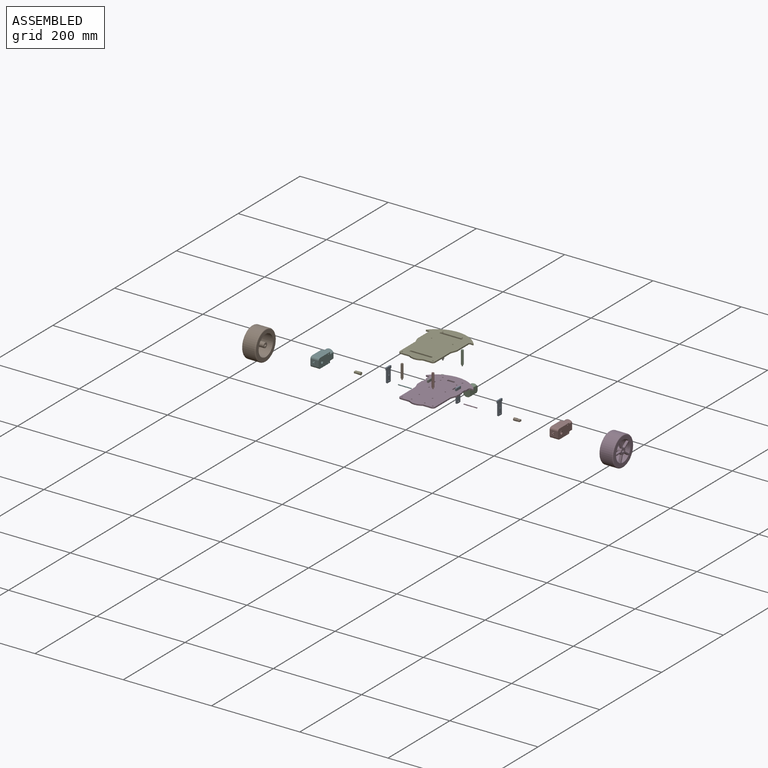
[diagram: assembled view]
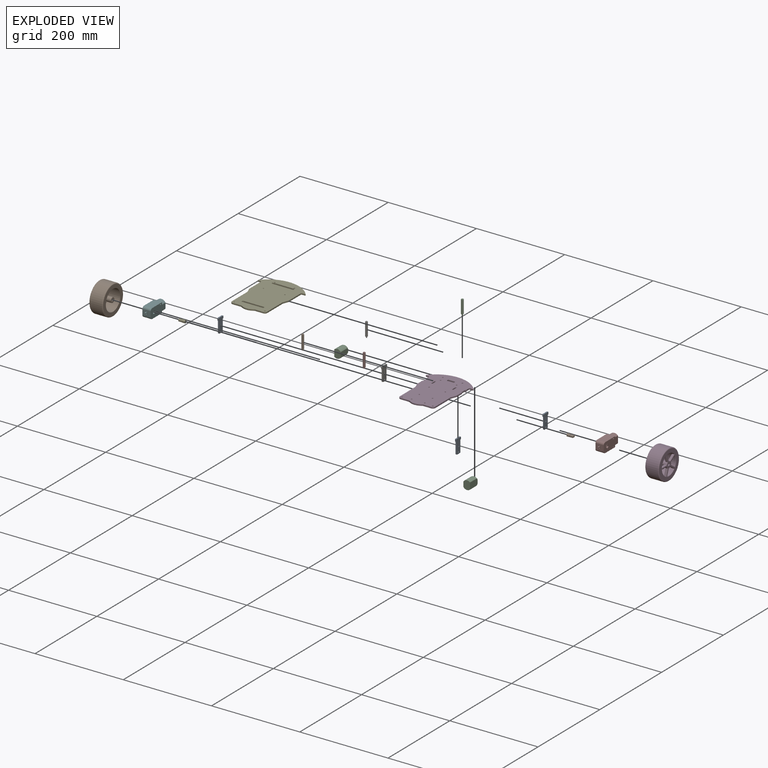
[diagram: exploded view]
GUIDED TOUR — MATED ASSEMBLY (Onshape document cdb42b76ef99259b916888b5, AutoMate assembly cdb42b76ef99259b916888b5_35de2721199a26688b1454a4_0b09e8b9e0a6c5ff9e0586c1_default)

This assembly has 20 components, labeled P0..P19 below (a component is one placed occurrence of a part; the same part can appear more than once), held together by 0 mates. A mate is a constraint between two components; its type names the relative motion it leaves free:
Axis/direction vectors are unit vectors and 'through' points are millimeter coordinates, both in the assembly's world frame.

MATES

ASSEMBLY ORDER
  1. P11 — the base component [order verified]
  2. P6 [order verified]
  3. P16 [order verified]
  4. P14 [order verified]
  5. P10 [order verified]
  6. P2 [order verified]
  7. P18 [order verified]
  8. P15 [order verified]
  9. P1 [order verified]
  10. P19 [order verified]
  11. P5 [order verified]
  12. P8 [order verified]
  13. P12 [order verified]
  14. P13 [order verified]
  15. P17 [order verified]
  16. P0 [order verified]
  17. P9 [order verified]
  18. P7 [order verified]
  19. P4 [order verified]
  20. P3 [order verified]
Order-tag legend:
  [order verified] — this step's position reverses a verified removal order: the component was checked to insert without passing through the ones already placed.

Of the 20 components, 8 carry the full construction recipe — the FeatureScript program that regenerates the part's solid from scratch; the rest are supplied as boundary geometry only.
Because this assembly has more than 12 components, the tour below covers the 12 most significant ones individually (every recipe-attached component first, then the largest by part volume), in assembly order; the remaining 8 are summarized together in a grouped section at the end.
Each toured component is shown spotlighted twice — in the assembled view, then in the exploded view, where a leader line traces a displaced component back to its assembled socket (saturated green if recipe-attached, orange if geometry-only; every other component desaturated gray) — followed by its recipe or geometry summary and the mates that hold it.
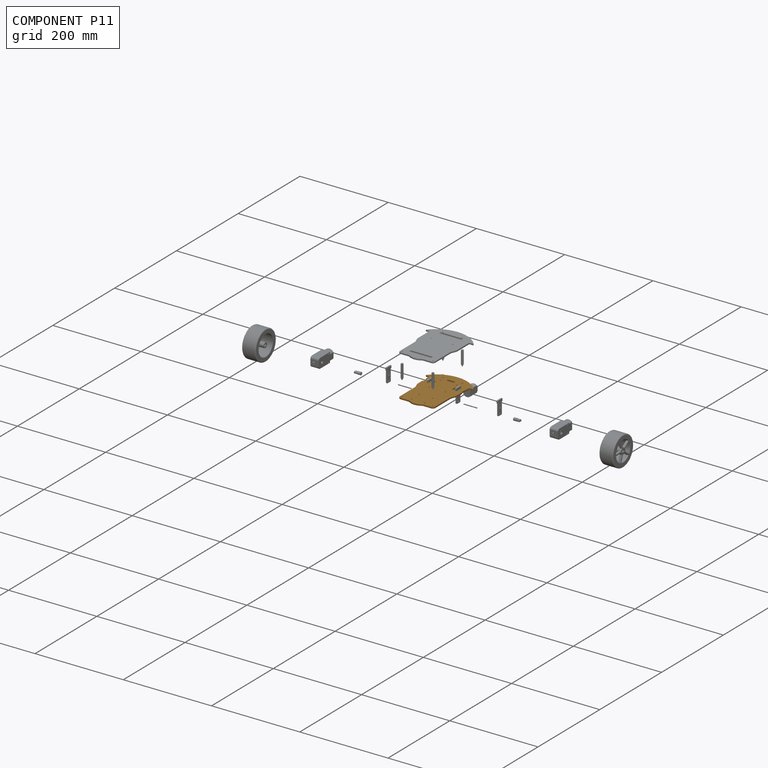
[diagram: component P11 — assembled]
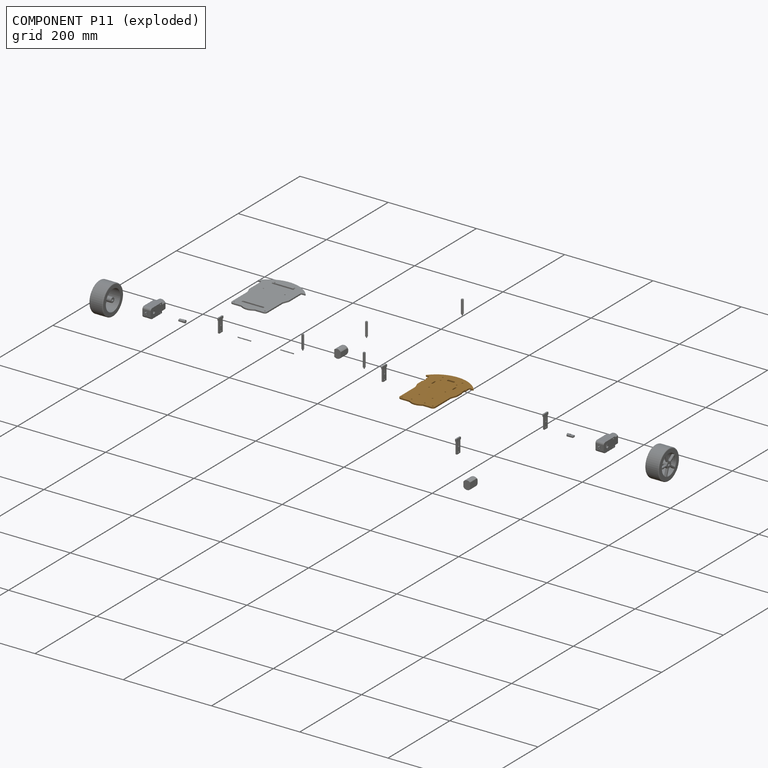
[diagram: component P11 — exploded]
COMPONENT P11 — geometry summary (no construction recipe available for this part):
  bounding box: 140.0 x 107.9 x 3.0 mm
  B-rep topology: 1 solid, 58 faces, 336 edges
  volume: 32997 mm^3 (73% of its bounding box)
  symmetry: 2-fold rotationally symmetric about the y axis; mirror-symmetric across its x mid-plane, z mid-plane
Held by: no mates (free).
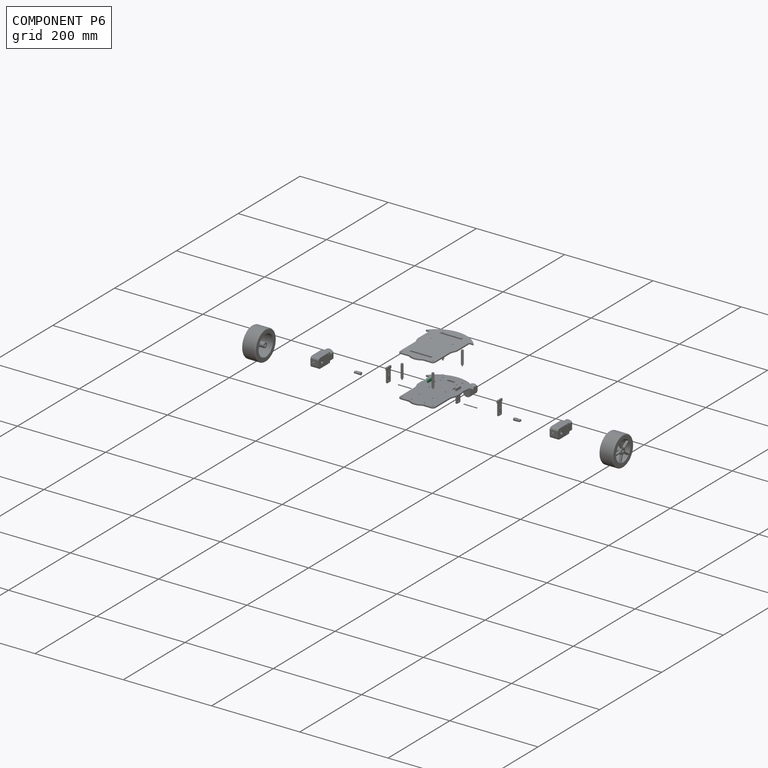
[diagram: component P6 — assembled]
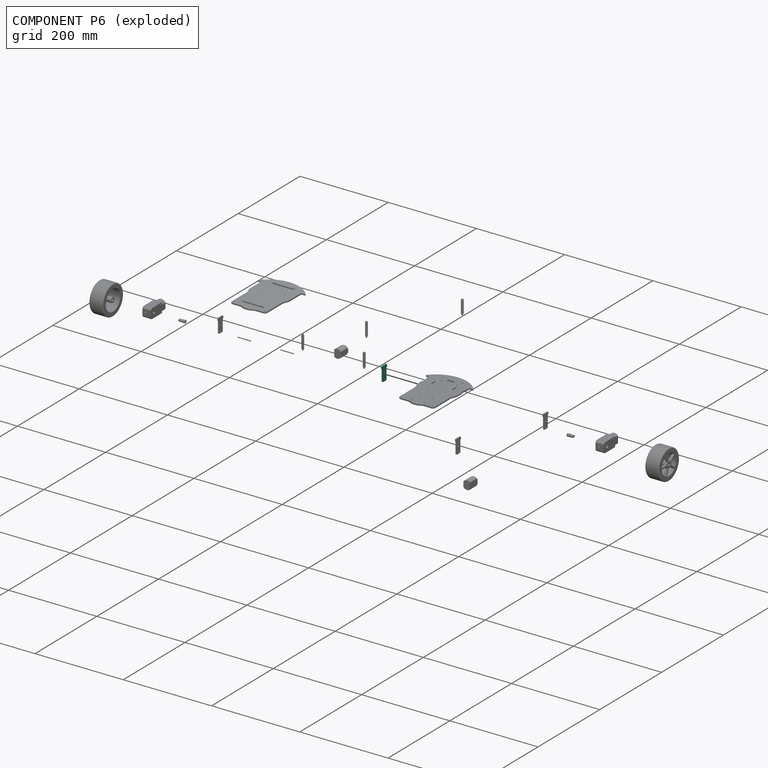
[diagram: component P6 — exploded]
COMPONENT P6 — same part as P0 (CADFS 00548820); its construction recipe is shown at P0.
Held by: no mates (free).
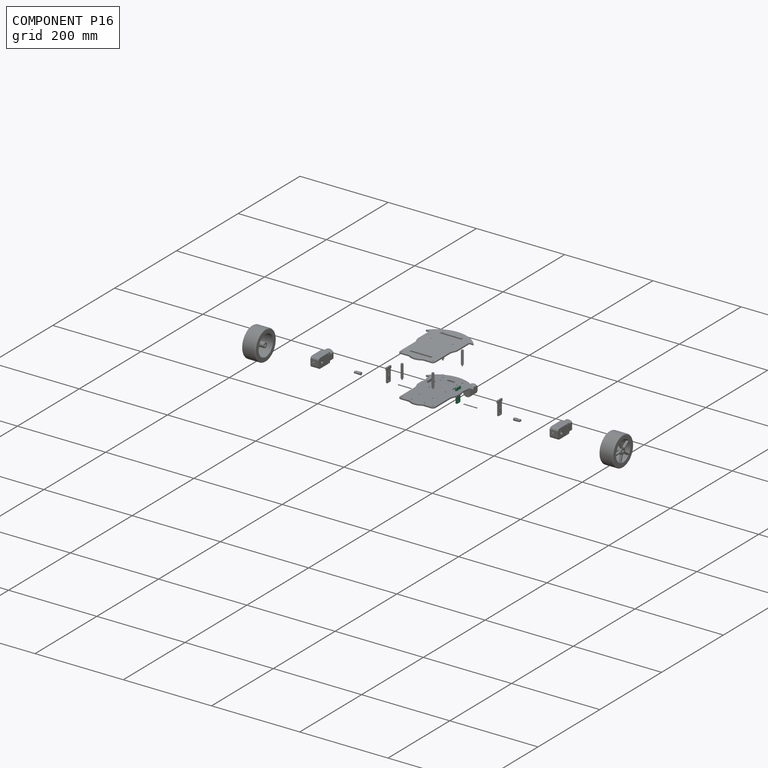
[diagram: component P16 — assembled]
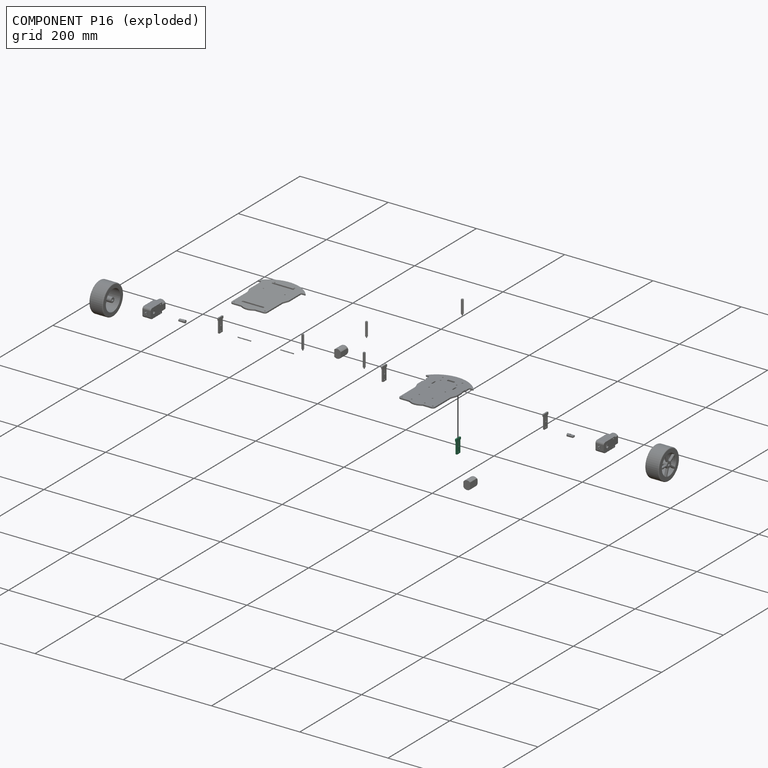
[diagram: component P16 — exploded]
COMPONENT P16 — same part as P0 (CADFS 00548820); its construction recipe is shown at P0.
Held by: no mates (free).
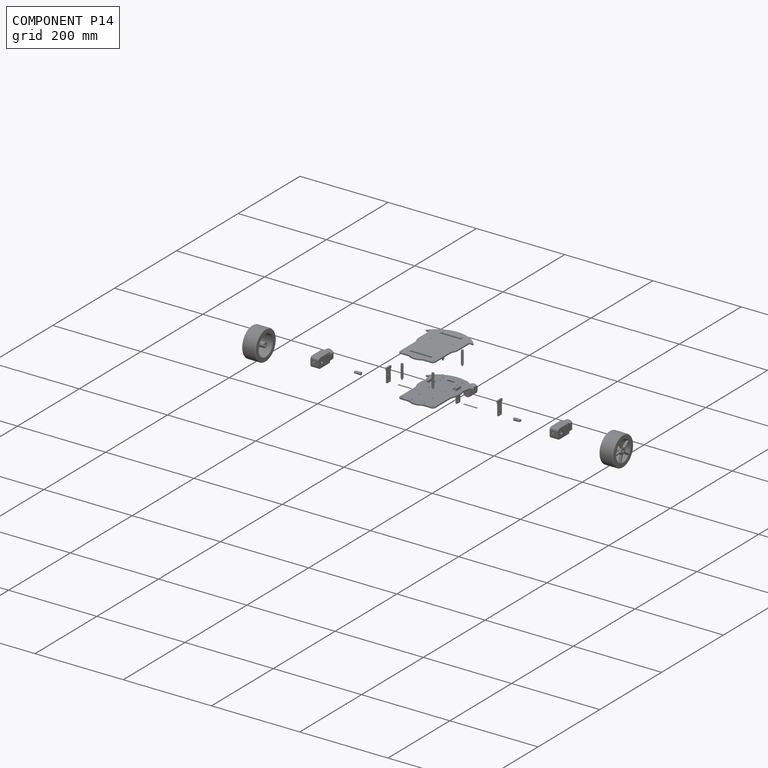
[diagram: component P14 — assembled]
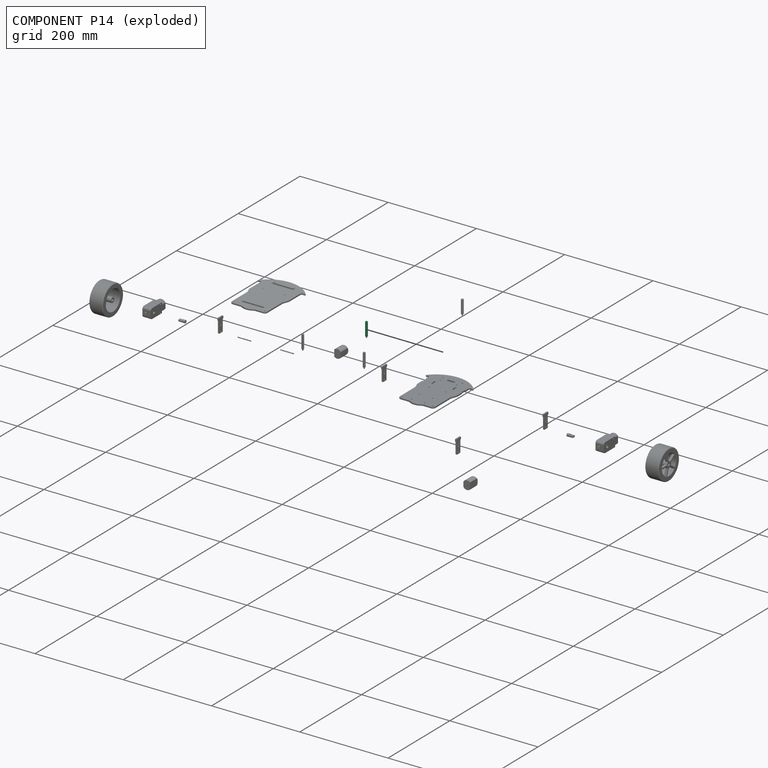
[diagram: component P14 — exploded]
COMPONENT P14 — same part as P1 (CADFS 00548821); its construction recipe is shown at P1.
Held by: no mates (free).
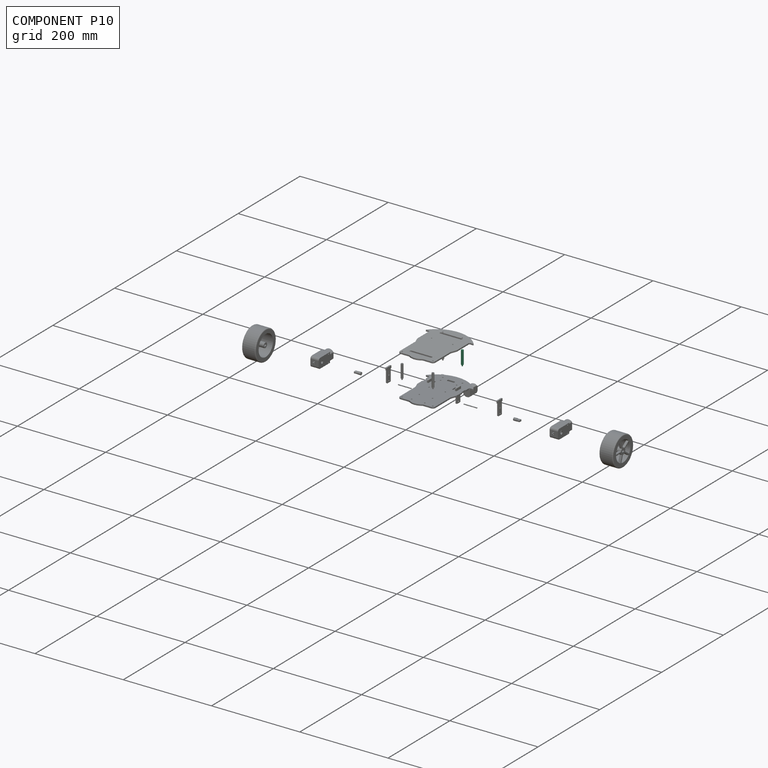
[diagram: component P10 — assembled]
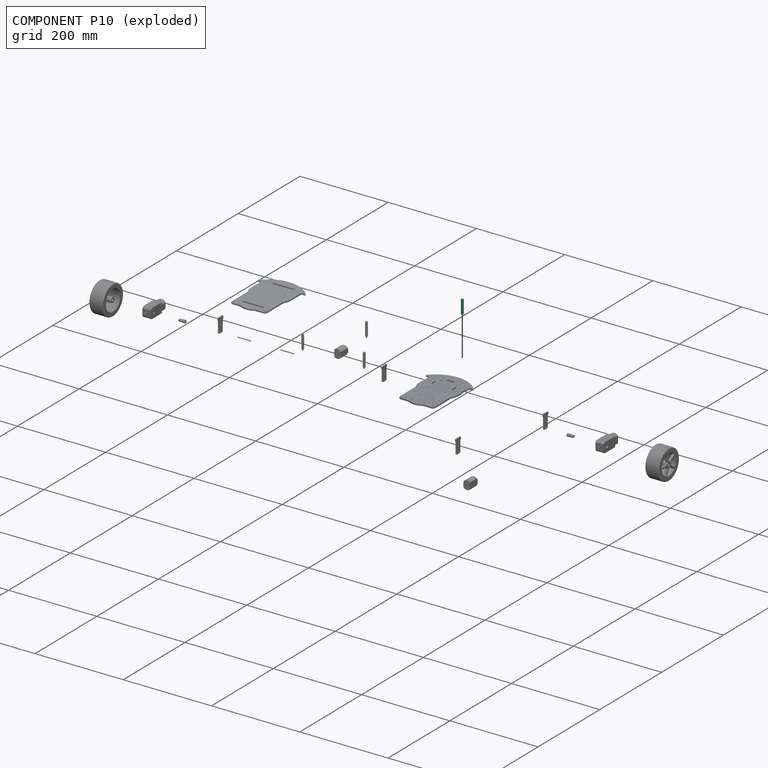
[diagram: component P10 — exploded]
COMPONENT P10 — same part as P1 (CADFS 00548821); its construction recipe is shown at P1.
Held by: no mates (free).
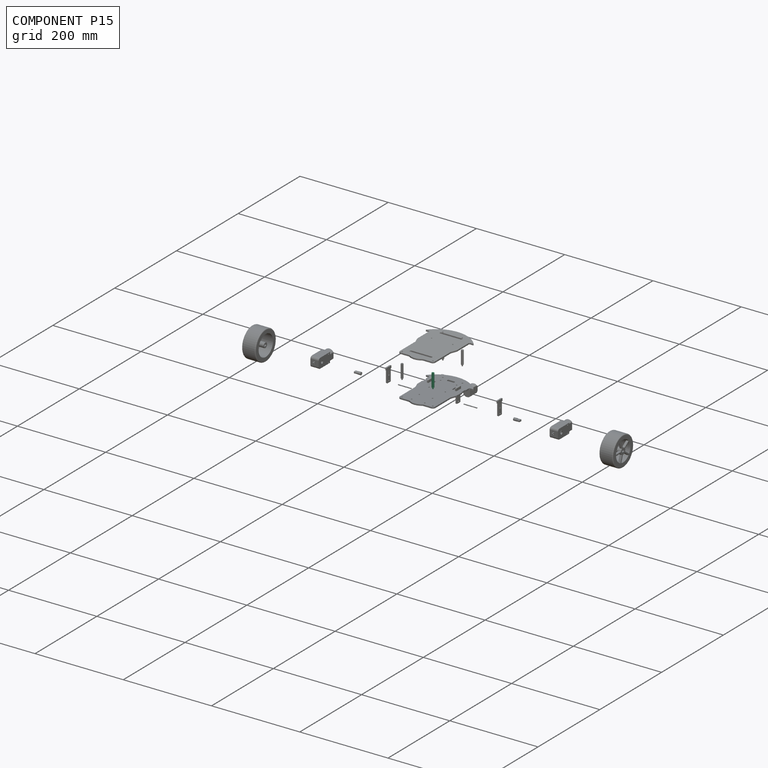
[diagram: component P15 — assembled]
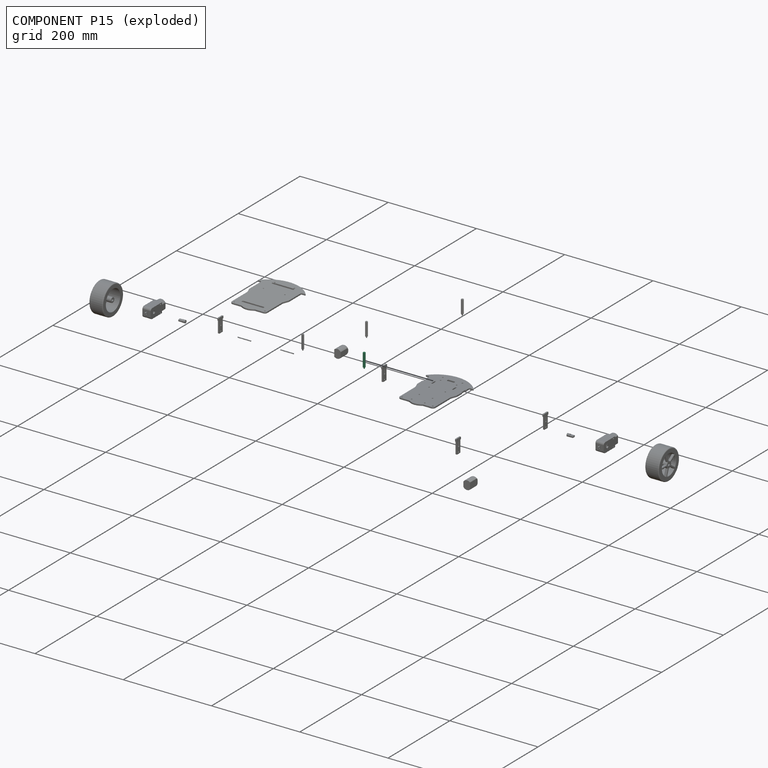
[diagram: component P15 — exploded]
COMPONENT P15 — same part as P1 (CADFS 00548821); its construction recipe is shown at P1.
Held by: no mates (free).
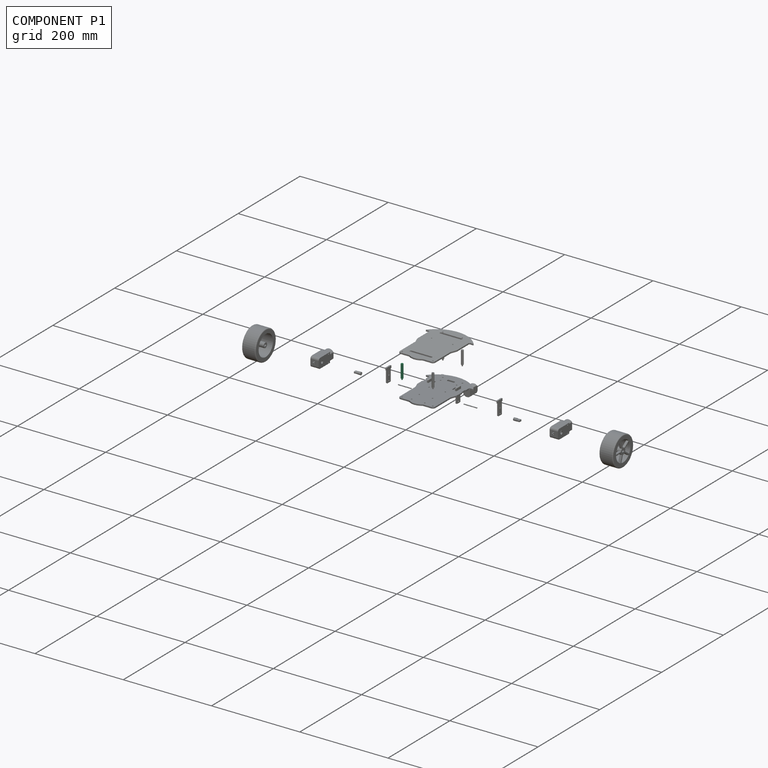
[diagram: component P1 — assembled]
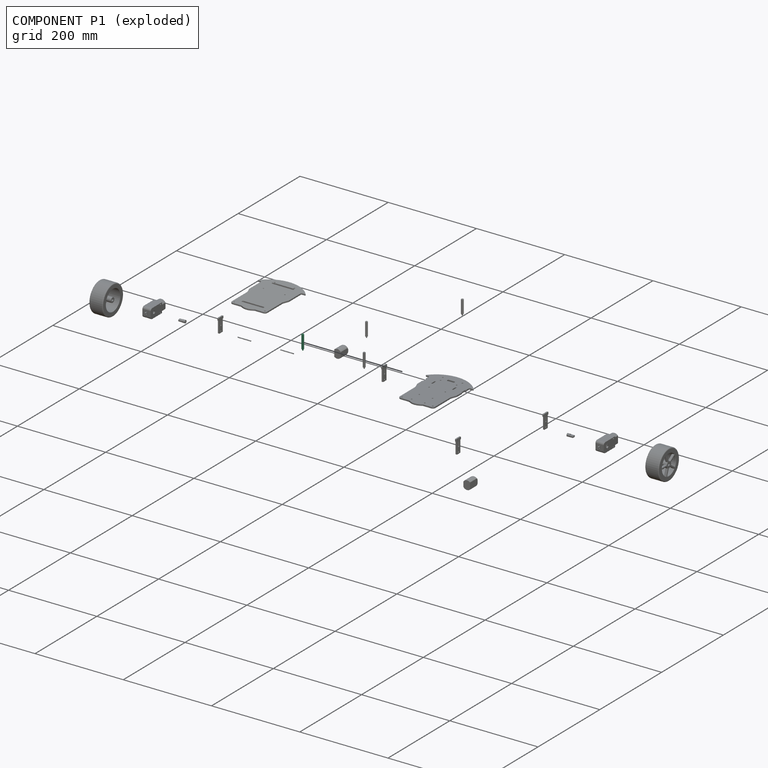
[diagram: component P1 — exploded]
COMPONENT P1 — recipe-attached (CADFS 00548821, mesh-verified: the recipe's output STEP matches this component's geometry to below the mesh-comparison resolution (tessellation chordal tolerance ~0.0508 mm)).
Held by: no mates (free).
Construction recipe (FeatureScript — the CAD program that rebuilds this solid; sketch coordinates are in the units given by the * unit suffixes, e.g. mm):

FeatureScript 1511;
import(path : "onshape/std/geometry.fs", version : "1511.0");
import(path : "onshape/std/common.fs", version : "1511.0");
const mm = millimeter;
const VERTEX = EntityType.VERTEX;
const EDGE = EntityType.EDGE;
const FACE = EntityType.FACE;
const BODY = EntityType.BODY;
function v(x, y){return vector(x, y);}
function OD(order){return orderDisambiguation(order);}
function OSD(set){return originalSetDisambiguation(set);}
function TD(topology){return topologyDisambiguation(topology);}
function TDD(query){return trueDependencyDisambiguation(query);}
function sQuery(a, b, c) {return sketchEntityQuery(a, b, c);}

annotation { "Feature Type Name" : "Feature", "Feature Type Description" : "" }
export const myFeature = defineFeature(function(context is Context, id is Id, definition is map)
    precondition{}
    {
        {
            var Q0;
            Q0=qCreatedBy(makeId("Top.planeOp"),FACE);
            var sketch = newSketch(context, id + "F0", { "sketchPlane" : qUnion([Q0])});
            skCircle(sketch, "E0", {"center": v(0, 0) * mm, "radius": 1.25 * mm});
            skSolve(sketch);
        }
        {
            var Q0;
            Q0 = qSketchRegion(id + "F0", true);
            extrude(context, id + "F1", {"entities" : qUnion([Q0]), "endBound" : BoundingType.SYMMETRIC, "oppositeDirection" : true, "depth" : 3 * mm, "offsetDistance" : 25 * mm});
        }
        {
            var Q0;
            Q0=makeQuery(id+"F1.opExtrude","CAP_FACE",FACE,{"disambiguationData":[OSD([sQuery(id+"F0.wireOp",EDGE,"E0")])],"isStart":true});
            var sketch = newSketch(context, id + "F2", { "sketchPlane" : qUnion([Q0])});
            skCircle(sketch, "E1.cCircle", {"center": v(0, 0) * mm, "radius": 2.5 * mm, "construction": true});
            skLineSegment(sketch, "E1.0", {"start": v(1.44, -2.5) * mm, "end": v(-1.44, -2.5) * mm});
            skLineSegment(sketch, "E1.1", {"start": v(-1.44, -2.5) * mm, "end": v(-2.89, 0) * mm});
            skLineSegment(sketch, "E1.2", {"start": v(-2.89, 0) * mm, "end": v(-1.44, 2.5) * mm});
            skLineSegment(sketch, "E1.3", {"start": v(-1.44, 2.5) * mm, "end": v(1.44, 2.5) * mm});
            skLineSegment(sketch, "E1.4", {"start": v(1.44, 2.5) * mm, "end": v(2.89, 0) * mm});
            skLineSegment(sketch, "E1.5", {"start": v(2.89, 0) * mm, "end": v(1.44, -2.5) * mm});
            skPoint(sketch, "E1.0.midPoint", {"position": v(0, -2.5) * mm});
            skSolve(sketch);
        }
        {
            var Q0;
            Q0=makeQuery(id+"F2.imprint","IMPRINT",FACE,{"disambiguationData":[TD([[makeQuery(id+"F2.imprint","IMPRINT",EDGE,{"derivedFrom":sQuery(id+"F2.wireOp",EDGE,"E1.0")}),-1.0]])]});
            var Q1;
            Q1=makeQuery(id+"F2.imprint","IMPRINT",FACE,{"disambiguationData":[TD([[makeQuery(id+"F2.imprint","IMPRINT",EDGE,{"derivedFrom":makeQuery(id+"F1.opExtrude","CAP_EDGE",EDGE,{"disambiguationData":[OSD([sQuery(id+"F0.wireOp",EDGE,"E0")])],"isStart":true})}),1.0]])]});
            extrude(context, id + "F3", {"entities" : qUnion([Q0, Q1]), "operationType" : NewBodyOperationType.ADD, "depth" : 30 * mm, "offsetDistance" : 25 * mm});
        }
        {
            var Q0;
            Q0=makeQuery(id+"F3.opExtrude","CAP_FACE",FACE,{"disambiguationData":[OSD([sQuery(id+"F2.wireOp",EDGE,"E1.0"),sQuery(id+"F2.wireOp",EDGE,"E1.1"),sQuery(id+"F2.wireOp",EDGE,"E1.2"),sQuery(id+"F2.wireOp",EDGE,"E1.3"),sQuery(id+"F2.wireOp",EDGE,"E1.4"),sQuery(id+"F2.wireOp",EDGE,"E1.5")])],"isStart":false});
            var sketch = newSketch(context, id + "F4", { "sketchPlane" : qUnion([Q0])});
            skCircle(sketch, "E2", {"center": v(0, 0) * mm, "radius": 1.25 * mm});
            skSolve(sketch);
        }
        {
            var Q0;
            Q0=makeQuery(id+"F4.imprint","IMPRINT",FACE,{"disambiguationData":[TD([[makeQuery(id+"F4.imprint","IMPRINT",EDGE,{"derivedFrom":sQuery(id+"F4.wireOp",EDGE,"E2")}),1.0]])]});
            extrude(context, id + "F5", {"entities" : qUnion([Q0]), "operationType" : NewBodyOperationType.REMOVE, "oppositeDirection" : true, "depth" : 3 * mm, "offsetDistance" : 25 * mm});
        }
    });
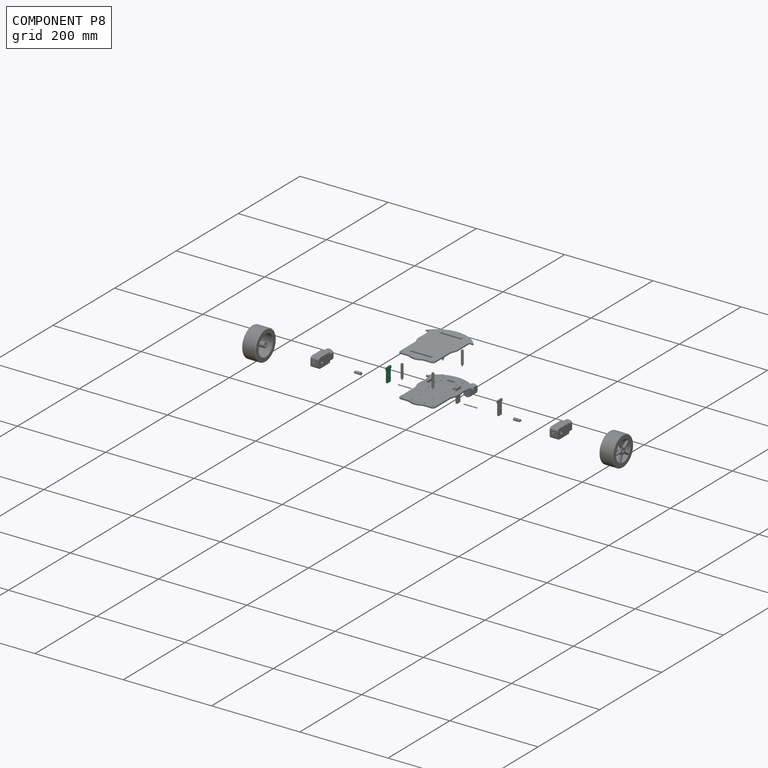
[diagram: component P8 — assembled]
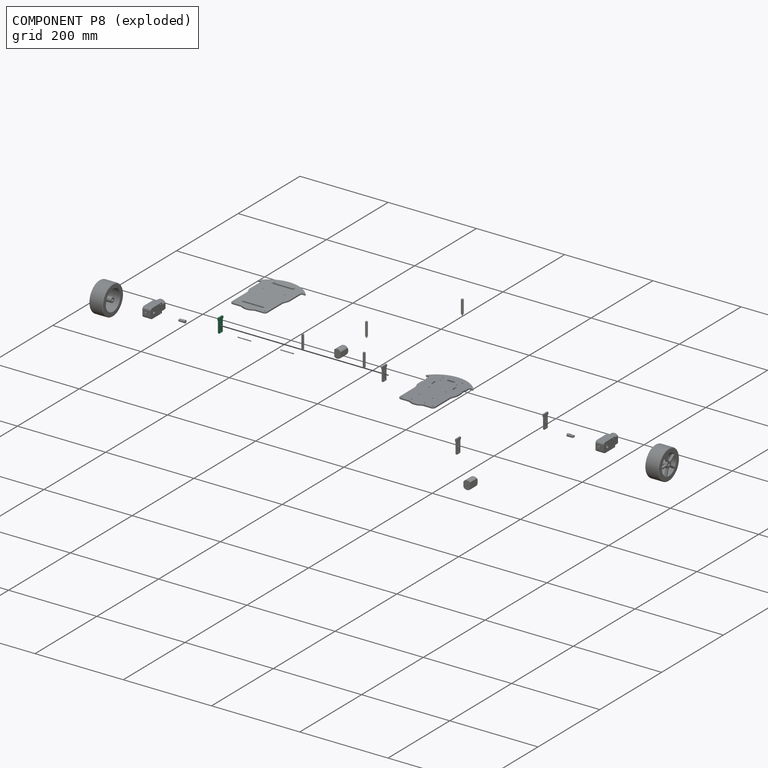
[diagram: component P8 — exploded]
COMPONENT P8 — same part as P0 (CADFS 00548820); its construction recipe is shown at P0.
Held by: no mates (free).
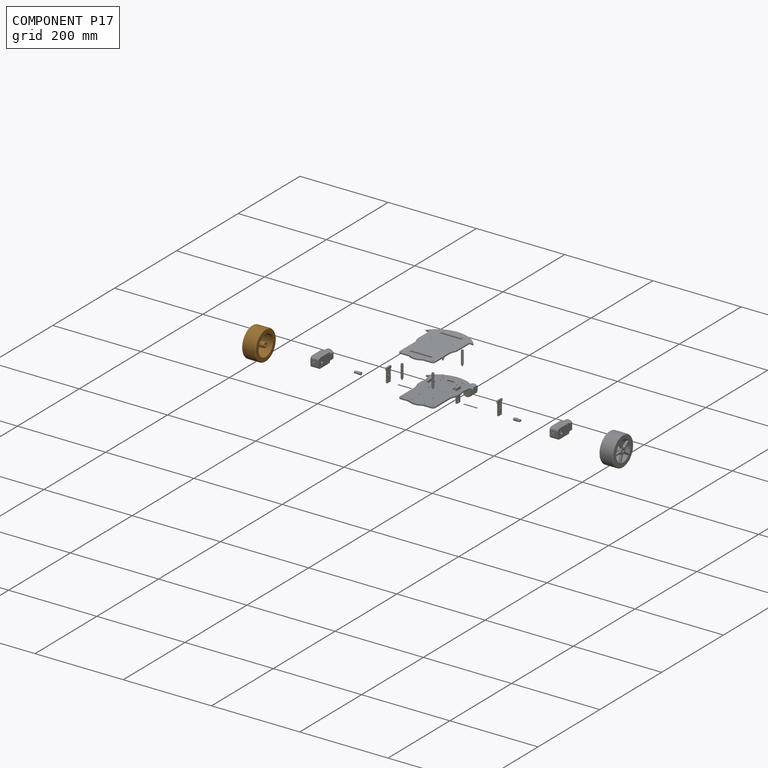
[diagram: component P17 — assembled]
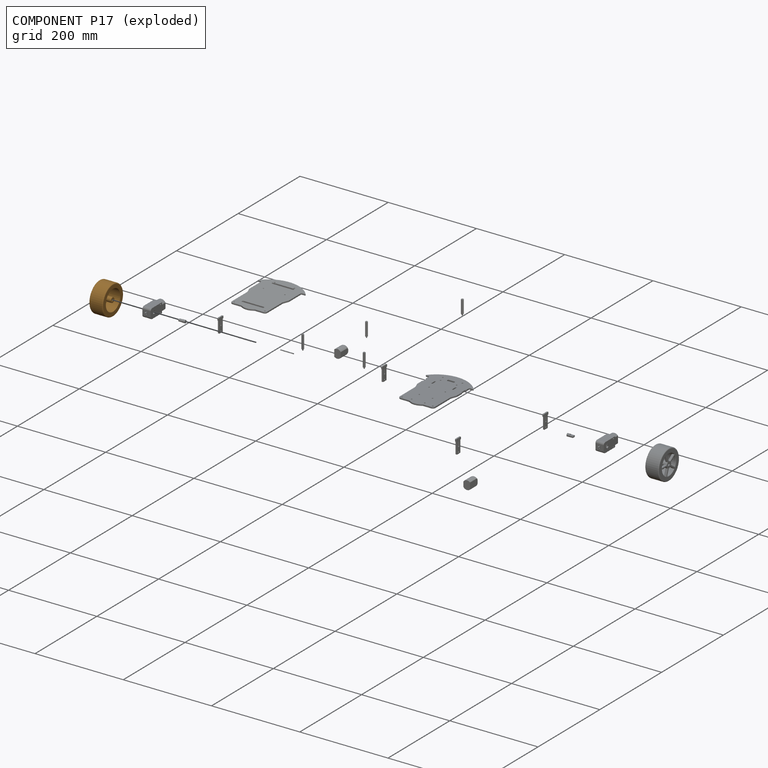
[diagram: component P17 — exploded]
COMPONENT P17 — geometry summary (no construction recipe available for this part):
  bounding box: 72.5 x 72.5 x 31.0 mm
  B-rep topology: 1 solid, 53 faces, 252 edges
  volume: 59974 mm^3 (37% of its bounding box)
  symmetry: mirror-symmetric across its x mid-plane
Held by: no mates (free).
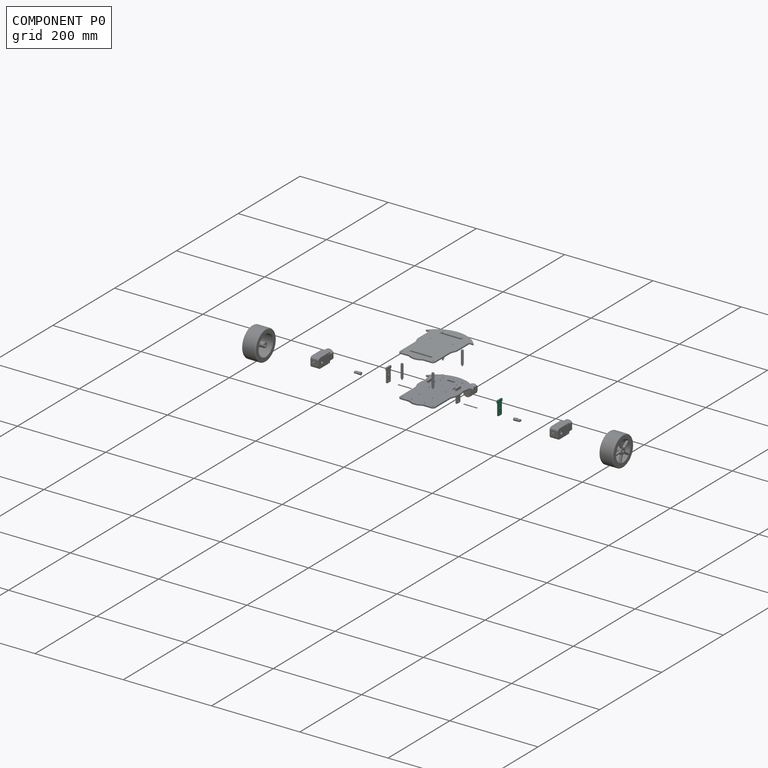
[diagram: component P0 — assembled]
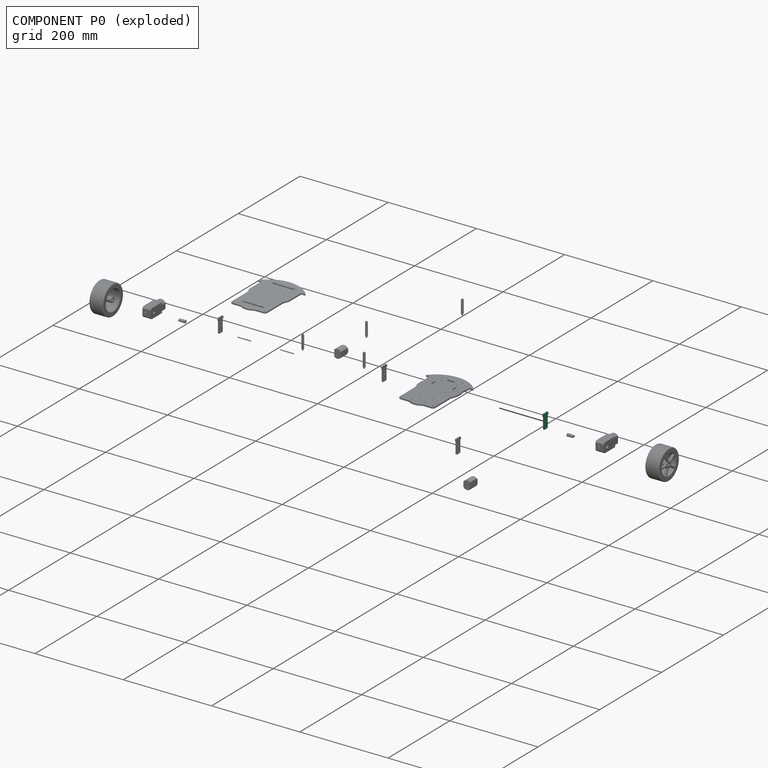
[diagram: component P0 — exploded]
COMPONENT P0 — recipe-attached (CADFS 00548820, mesh-verified: the recipe's output STEP matches this component's geometry to below the mesh-comparison resolution (tessellation chordal tolerance ~0.0539 mm)).
Held by: no mates (free).
Construction recipe (FeatureScript — the CAD program that rebuilds this solid; sketch coordinates are in the units given by the * unit suffixes, e.g. mm):

FeatureScript 1511;
import(path : "onshape/std/geometry.fs", version : "1511.0");
import(path : "onshape/std/common.fs", version : "1511.0");
const mm = millimeter;
const VERTEX = EntityType.VERTEX;
const EDGE = EntityType.EDGE;
const FACE = EntityType.FACE;
const BODY = EntityType.BODY;
function v(x, y){return vector(x, y);}
function OD(order){return orderDisambiguation(order);}
function OSD(set){return originalSetDisambiguation(set);}
function TD(topology){return topologyDisambiguation(topology);}
function TDD(query){return trueDependencyDisambiguation(query);}
function sQuery(a, b, c) {return sketchEntityQuery(a, b, c);}

annotation { "Feature Type Name" : "Feature", "Feature Type Description" : "" }
export const myFeature = defineFeature(function(context is Context, id is Id, definition is map)
    precondition{}
    {
        {
            var Q0;
            Q0=qCreatedBy(makeId("Right.planeOp"),FACE);
            var sketch = newSketch(context, id + "F0", { "sketchPlane" : qUnion([Q0])});
            skLineSegment(sketch, "E0.bottom", {"start": v(-6.58, 6.06) * mm, "end": v(6.57, 6.06) * mm});
            skLineSegment(sketch, "E0.top", {"start": v(-4.65, -26.4) * mm, "end": v(4.65, -26.4) * mm});
            skLineSegment(sketch, "E0.left", {"start": v(-7.58, 5.06) * mm, "end": v(-7.58, 0.51) * mm});
            skLineSegment(sketch, "E0.right", {"start": v(7.57, 5.06) * mm, "end": v(7.57, 0.51) * mm});
            skLineSegment(sketch, "E1", {"start": v(6.58, 0.51) * mm, "end": v(-6.58, 0.51) * mm, "construction": true});
            skLineSegment(sketch, "E2", {"start": v(5.65, 16) * mm, "end": v(5.65, -25.4) * mm, "construction": true});
            skLineSegment(sketch, "E3", {"start": v(5.65, -33.33) * mm, "end": v(-5.65, -33.33) * mm, "construction": true});
            skLineSegment(sketch, "E4", {"start": v(-5.65, -25.4) * mm, "end": v(-5.65, 17.41) * mm, "construction": true});
            skLineSegment(sketch, "E5", {"start": v(-7.58, 0.51) * mm, "end": v(-5.65, 0.51) * mm});
            skLineSegment(sketch, "E6", {"start": v(-5.65, 0.51) * mm, "end": v(-5.65, -26.4) * mm});
            skLineSegment(sketch, "E7", {"start": v(5.65, -26.4) * mm, "end": v(5.65, 0.51) * mm});
            skLineSegment(sketch, "E8", {"start": v(5.65, 0.51) * mm, "end": v(7.58, 0.51) * mm});
            skLineSegment(sketch, "E9", {"start": v(-0.5, -1.39) * mm, "end": v(0.5, -1.39) * mm, "construction": true});
            skLineSegment(sketch, "E10.bottom", {"start": v(-1.5, -1.39) * mm, "end": v(1.5, -1.39) * mm});
            skLineSegment(sketch, "E10.top", {"start": v(-0.5, -12.19) * mm, "end": v(0.5, -12.19) * mm});
            skLineSegment(sketch, "E10.left", {"start": v(-1.5, -2.39) * mm, "end": v(-1.5, -11.19) * mm});
            skLineSegment(sketch, "E10.right", {"start": v(1.5, -2.39) * mm, "end": v(1.5, -11.19) * mm});
            skPoint(sketch, "E11.visualSharp", {"position": v(-7.58, 6.06) * mm});
            skArc(sketch, "E11.filletArc", {"start": v(-6.58, 6.06) * mm, "mid": v(-7.28, 5.77) * mm, "end": v(-7.58, 5.06) * mm});
            skPoint(sketch, "E12.visualSharp", {"position": v(7.58, 6.06) * mm});
            skArc(sketch, "E12.filletArc", {"start": v(7.57, 5.06) * mm, "mid": v(7.28, 5.77) * mm, "end": v(6.57, 6.06) * mm});
            skPoint(sketch, "E13.newPointA", {"position": v(15.85, -1.39) * mm});
            skArc(sketch, "E13.filletArc", {"start": v(1.5, -2.39) * mm, "mid": v(1.2, -1.68) * mm, "end": v(0.5, -1.39) * mm});
            skPoint(sketch, "E14.newPointB", {"position": v(-18.85, -1.39) * mm});
            skArc(sketch, "E14.filletArc", {"start": v(-0.5, -1.39) * mm, "mid": v(-1.2, -1.68) * mm, "end": v(-1.5, -2.39) * mm});
            skPoint(sketch, "E15.visualSharp", {"position": v(-1.5, -12.19) * mm});
            skArc(sketch, "E15.filletArc", {"start": v(-1.5, -11.19) * mm, "mid": v(-1.2, -11.9) * mm, "end": v(-0.5, -12.19) * mm});
            skPoint(sketch, "E16.visualSharp", {"position": v(1.5, -12.19) * mm});
            skArc(sketch, "E16.filletArc", {"start": v(0.5, -12.19) * mm, "mid": v(1.2, -11.9) * mm, "end": v(1.5, -11.19) * mm});
            skLineSegment(sketch, "E17", {"start": v(-13.1, -25.57) * mm, "end": v(10.75, -25.57) * mm, "construction": true});
            skLineSegment(sketch, "E18", {"start": v(10.75, -25.57) * mm, "end": v(10.75, -24.07) * mm, "construction": true});
            skLineSegment(sketch, "E19", {"start": v(10.75, -24.07) * mm, "end": v(-14.98, -24.07) * mm, "construction": true});
            skArc(sketch, "E20.filletArc", {"start": v(-5.65, -25.4) * mm, "mid": v(-5.36, -26.12) * mm, "end": v(-4.65, -26.4) * mm});
            skArc(sketch, "E21.filletArc", {"start": v(4.65, -26.4) * mm, "mid": v(5.36, -26.12) * mm, "end": v(5.65, -25.4) * mm});
            skPoint(sketch, "E22", {"position": v(0, -25.57) * mm});
            skCircle(sketch, "E23", {"center": v(0, -22.4) * mm, "radius": 1.5 * mm});
            skSolve(sketch);
        }
        {
            var Q0;
            Q0=makeQuery(id+"F0.imprint","IMPRINT",FACE,{"disambiguationData":[TD([[makeQuery(id+"F0.imprint","IMPRINT",EDGE,{"derivedFrom":sQuery(id+"F0.wireOp",EDGE,"E0.bottom")}),-1.0]])]});
            extrude(context, id + "F1", {"entities" : qUnion([Q0]), "depth" : 3 * mm, "offsetDistance" : 25 * mm});
        }
    });
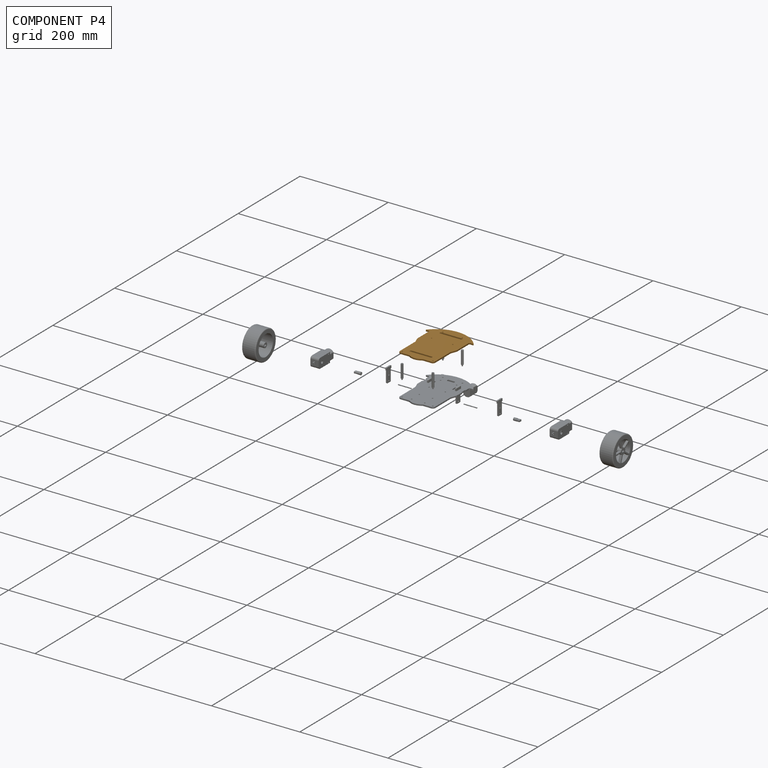
[diagram: component P4 — assembled]
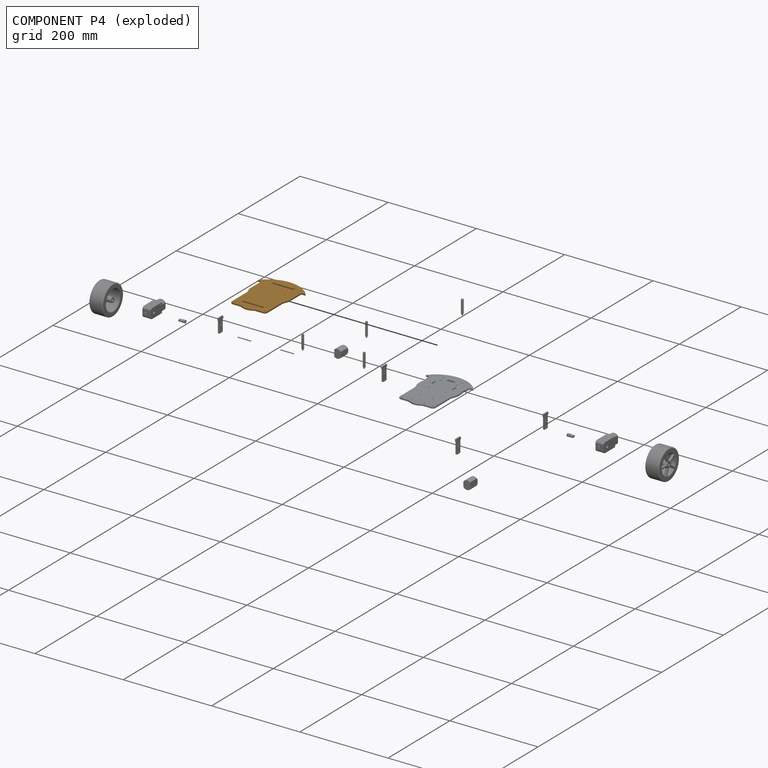
[diagram: component P4 — exploded]
COMPONENT P4 — geometry summary (no construction recipe available for this part):
  bounding box: 140.0 x 107.9 x 3.0 mm
  B-rep topology: 1 solid, 48 faces, 276 edges
  volume: 32261 mm^3 (71% of its bounding box)
  symmetry: 2-fold rotationally symmetric about the y axis; mirror-symmetric across its x mid-plane, z mid-plane
Held by: no mates (free).
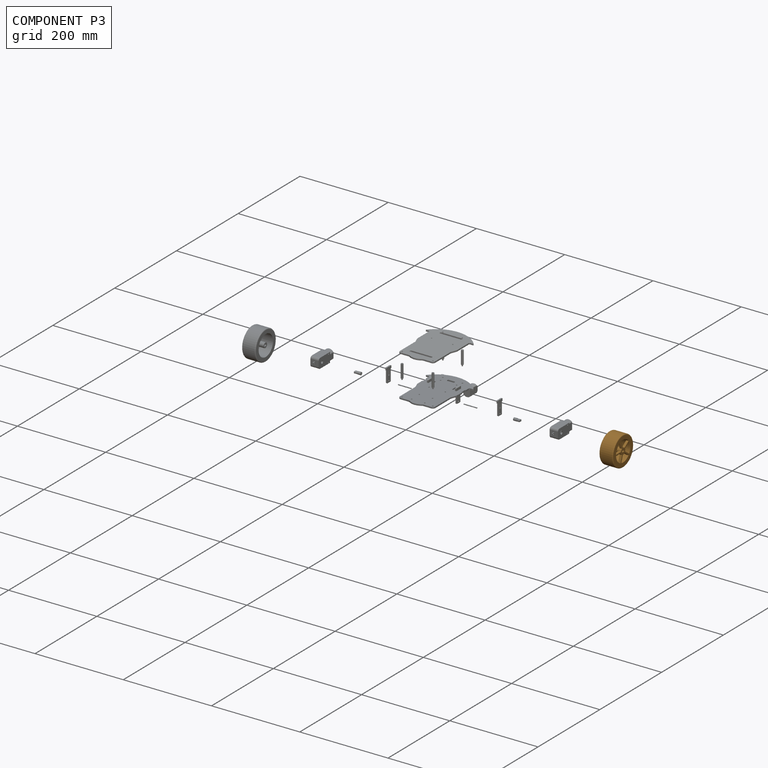
[diagram: component P3 — assembled]
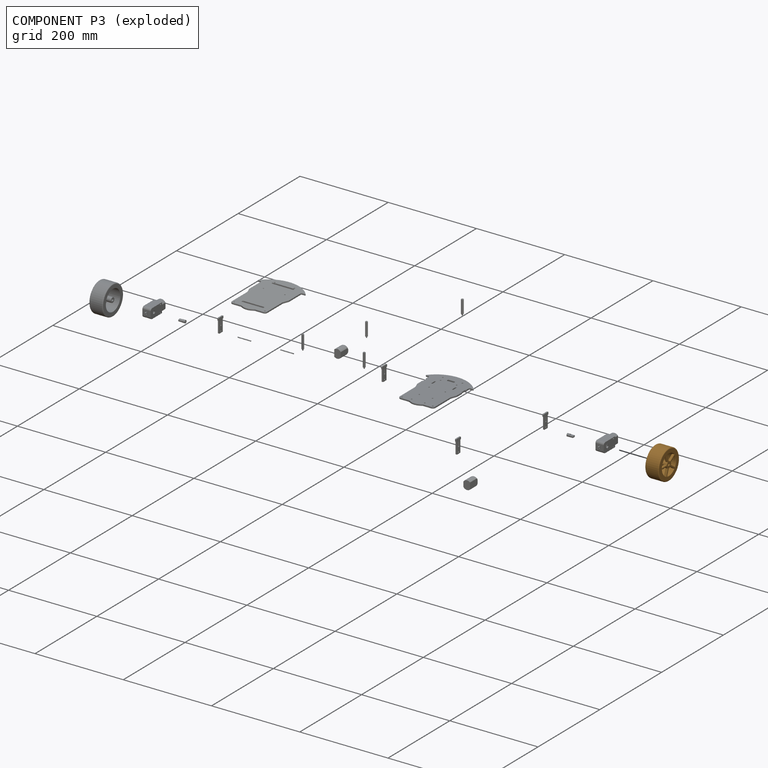
[diagram: component P3 — exploded]
COMPONENT P3 — geometry summary (no construction recipe available for this part):
  bounding box: 72.5 x 72.5 x 31.0 mm
  B-rep topology: 1 solid, 53 faces, 252 edges
  volume: 59974 mm^3 (37% of its bounding box)
  symmetry: mirror-symmetric across its x mid-plane
Held by: no mates (free).
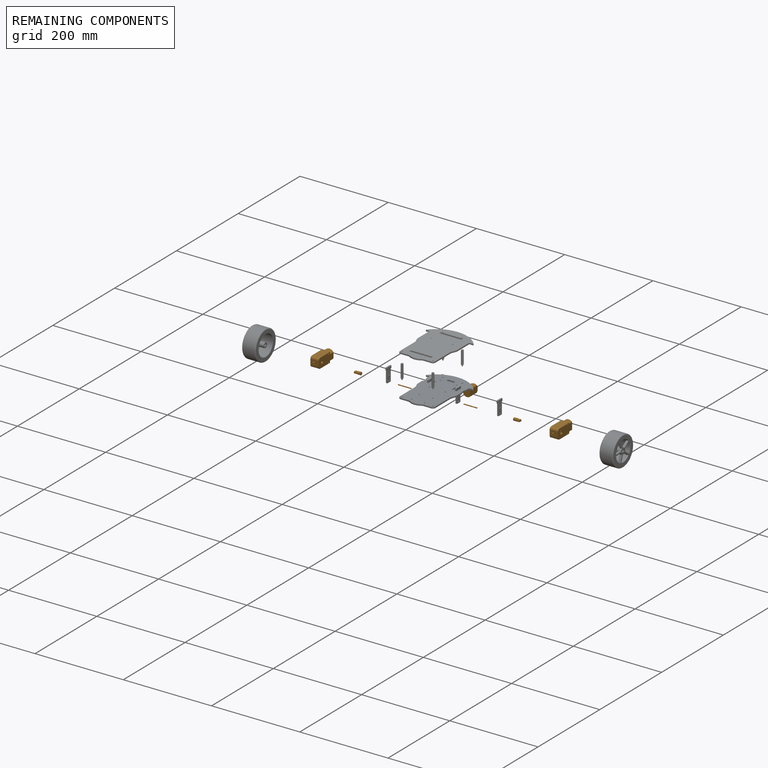
[diagram: remaining components — assembled]
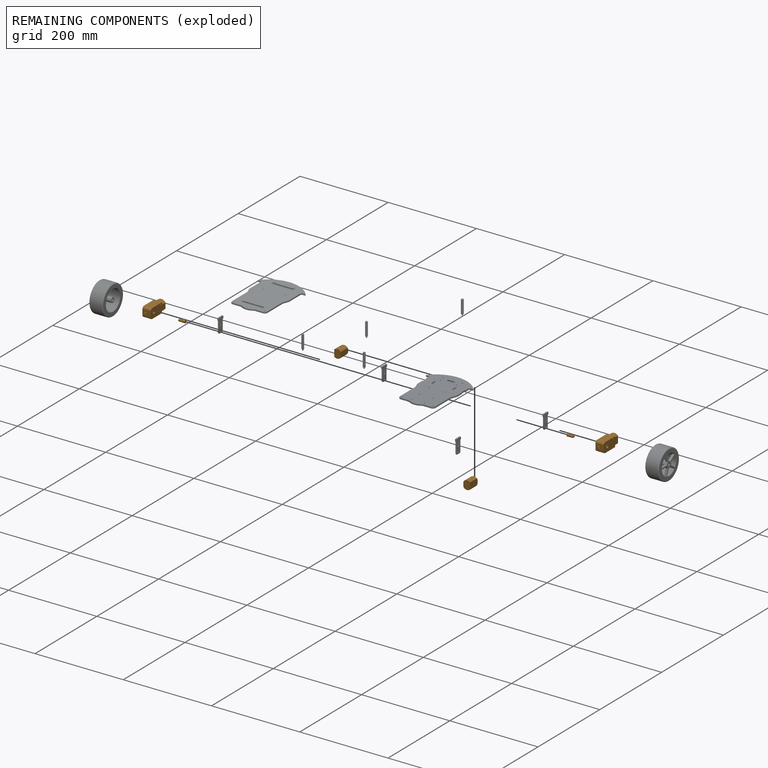
[diagram: remaining components — exploded]
REMAINING COMPONENTS (grouped) — the 8 components below fall outside the per-component tour by the significance rule stated above; both spotlight views highlight the whole group.
  P2: bounding box 28.2 x 21.6 x 21.6 mm, volume 6631 mm^3. Held by: no mates (free).
  P18: bounding box 28.2 x 21.6 x 21.6 mm, volume 6631 mm^3. Held by: no mates (free).
  P19: bounding box 30.0 x 2.0 x 2.0 mm, volume 94 mm^3. Held by: no mates (free).
  P5: bounding box 30.0 x 2.0 x 2.0 mm, volume 94 mm^3. Held by: no mates (free).
  P12: bounding box 14.5 x 6.4 x 6.4 mm, volume 352 mm^3. Held by: no mates (free).
  P13: bounding box 53.1 x 22.3 x 19.2 mm, volume 15380 mm^3. Held by: no mates (free).
  P9: bounding box 14.5 x 6.4 x 6.4 mm, volume 352 mm^3. Held by: no mates (free).
  P7: bounding box 53.1 x 22.3 x 19.2 mm, volume 15380 mm^3. Held by: no mates (free).
PROVENANCE & LICENSES
Assembly (occurrences, transforms, mates, per-part STEP geometry): AutoMate dataset, Zenodo record 7776208, CC0.
Construction recipes: CADFS (HuggingFace VladPyatov/CADFS, CC-BY-4.0, layered over the ABC dataset), FeatureScript reconstruction programs keyed by ABC model id.
Join: ABC meta listings map ABC model id -> Onshape documentId; within a shared document, parts are matched by geometric signature (bounding-box dims + volume at 0.1% relative tolerance, exact B-rep face/solid counts).
Verification: 8 of this assembly's 20 components carry a recipe attachment, and every attachment is mesh-verified: the CADFS STEP and the AutoMate member STEP were compared as meshes in their shared local frame (symmetric sampled-point-to-mesh distance); worst across the 8 attachments: below the mesh-comparison resolution (tessellation chordal tolerance ~0.0539 mm) on a 36 mm part.
Renders: orthographic iso camera (az 35 / el 25); the floor grid conveys scale (grid pitch printed in each image; no ruler). In the exploded view each component is displaced by its stored offset vector: the offsets alone carry the explosion direction (mate normal/axis signs are not orientation cues and do not encode it), and separation distances are assigned per mate-chain, not proportionally to assembly-order depth.
